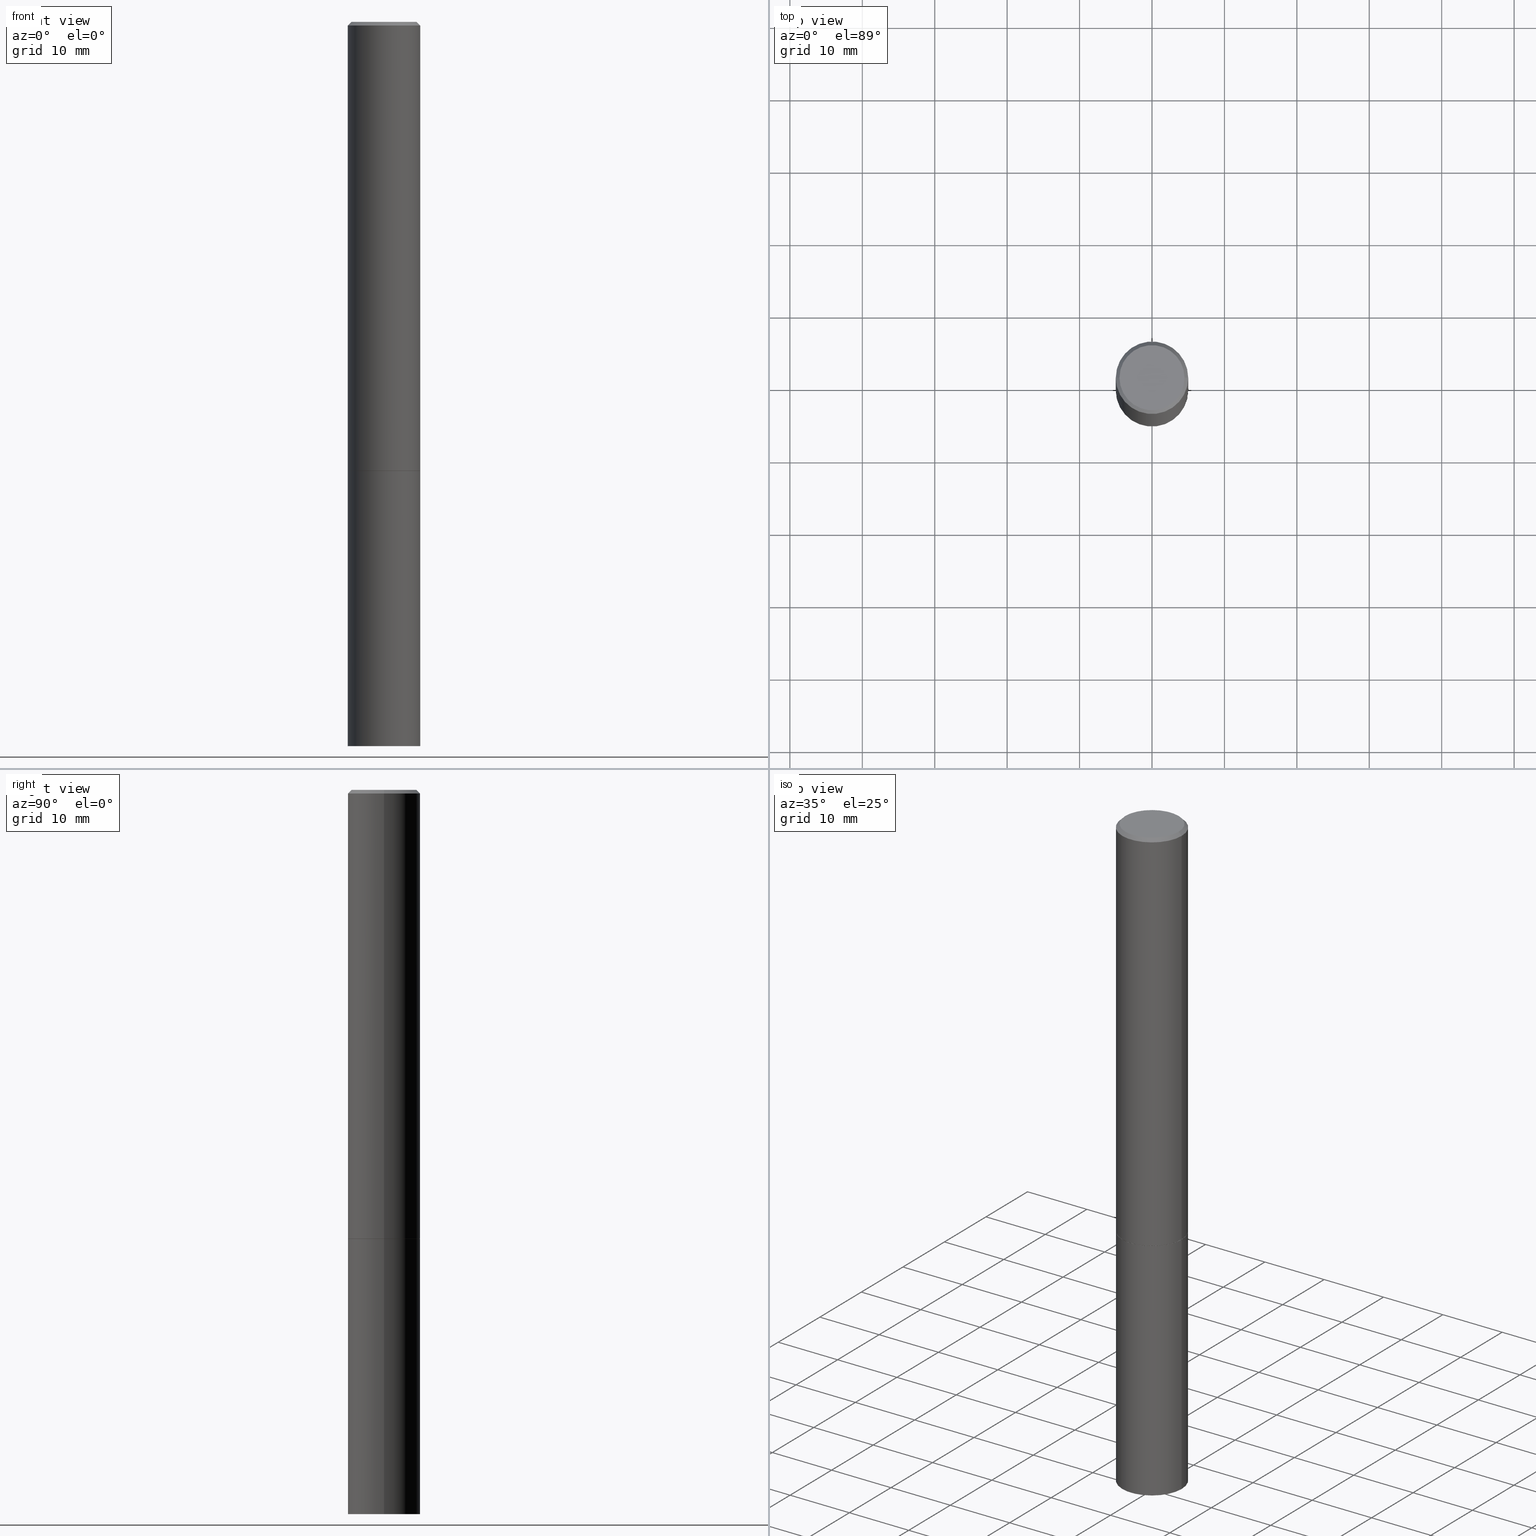
[diagram: canonical four-view strip — front | top / right | iso, engineering-drawing reading convention]
A machine part, canonical four-view strip (front | top / right | iso — engineering-drawing reading convention). The complete STEP part file that produces these views, byte-faithful:
ISO-10303-21;
HEADER;
FILE_DESCRIPTION (( 'STEP AP203' ),
    '1' );
FILE_NAME ('49497.STEP',
    '2024-02-29T00:19:27',
    ( '' ),
    ( '' ),
    'SwSTEP 2.0',
    'SolidWorks 2023',
    '' );
FILE_SCHEMA (( 'CONFIG_CONTROL_DESIGN' ));
ENDSEC;

DATA;
#1 = AXIS2_PLACEMENT_3D ( 'NONE', #11, #165, #64 ) ;
#2 = EDGE_CURVE ( 'NONE', #66, #182, #45, .T. ) ;
#3 = CARTESIAN_POINT ( 'NONE',  ( 0.1968500000000000527, -9.893461521745931567E-15, -2.439899999999999736 ) ) ;
#4 = PERSON ( 'UNSPECIFIED', 'UNSPECIFIED', 'UNSPECIFIED', ('UNSPECIFIED'), ('UNSPECIFIED'), ('UNSPECIFIED') ) ;
#5 = DIRECTION ( 'NONE',  ( 1.000000000000000000, -6.982962677686262766E-15, 0.000000000000000000 ) ) ;
#6 = DIRECTION ( 'NONE',  ( 1.000000000000000000, -6.982962677686266711E-15, 0.000000000000000000 ) ) ;
#7 = ADVANCED_FACE ( 'NONE', ( #24 ), #362, .T. ) ;
#8 = AXIS2_PLACEMENT_3D ( 'NONE', #347, #87, #261 ) ;
#9 = APPROVAL_PERSON_ORGANIZATION ( #187, #38, #220 ) ;
#10 = DIRECTION ( 'NONE',  ( 1.000000000000000000, -6.982962677686262766E-15, 0.000000000000000000 ) ) ;
#11 = CARTESIAN_POINT ( 'NONE',  ( 5.969144809017299038E-29, -8.522356799982232966E-15, -2.440900000000000070 ) ) ;
#12 = LINE ( 'NONE', #88, #313 ) ;
#13 = ORIENTED_EDGE ( 'NONE', *, *, #211, .T. ) ;
#14 = DIRECTION ( 'NONE',  ( 1.000000000000000000, -6.982962677686265922E-15, 4.876176775795935793E-29 ) ) ;
#15 = DIRECTION ( 'NONE',  ( 1.000000000000000000, -6.982962677686266711E-15, 0.000000000000000000 ) ) ;
#16 = VERTEX_POINT ( 'NONE', #110 ) ;
#17 = EDGE_LOOP ( 'NONE', ( #262, #257, #207, #298 ) ) ;
#18 = ADVANCED_FACE ( 'NONE', ( #271 ), #170, .T. ) ;
#19 = DIRECTION ( 'NONE',  ( -2.445468806185136877E-29, 3.491481338843145188E-15, 1.000000000000000000 ) ) ;
#20 = VECTOR ( 'NONE', #351, 39.37007874015748143 ) ;
#21 = CALENDAR_DATE ( 2024, 28, 2 ) ;
#22 = APPROVAL_DATE_TIME ( #276, #116 ) ;
#23 = CALENDAR_DATE ( 2024, 28, 2 ) ;
#24 = FACE_OUTER_BOUND ( 'NONE', #282, .T. ) ;
#25 = APPROVAL_PERSON_ORGANIZATION ( #222, #304, #216 ) ;
#26 = SECURITY_CLASSIFICATION ( '', '', #156 ) ;
#27 = EDGE_LOOP ( 'NONE', ( #81, #13 ) ) ;
#28 = ORIENTED_EDGE ( 'NONE', *, *, #230, .F. ) ;
#29 = ADVANCED_FACE ( 'NONE', ( #246 ), #330, .T. ) ;
#30 = LINE ( 'NONE', #309, #47 ) ;
#31 = PLANE ( 'NONE',  #8 ) ;
#32 = CARTESIAN_POINT ( 'NONE',  ( 4.890937612370278413E-31, -6.982962677686297772E-17, -0.02000000000000002123 ) ) ;
#33 = EDGE_CURVE ( 'NONE', #173, #363, #30, .T. ) ;
#34 = CYLINDRICAL_SURFACE ( 'NONE', #119, 0.1968499999999998307 ) ;
#35 = CIRCLE ( 'NONE', #359, 0.1968499999999996364 ) ;
#36 = DIRECTION ( 'NONE',  ( 1.000000000000000000, -6.982962677686265922E-15, 4.876176775795935793E-29 ) ) ;
#37 = DIRECTION ( 'NONE',  ( 1.000000000000000000, -6.982962677686266711E-15, 4.875932113059887537E-29 ) ) ;
#38 = APPROVAL ( #249, 'UNSPECIFIED' ) ;
#39 = CARTESIAN_POINT ( 'NONE',  ( 5.966699340211114556E-29, -8.518865318643389958E-15, -2.439899999999999736 ) ) ;
#40 = ORIENTED_EDGE ( 'NONE', *, *, #157, .F. ) ;
#41 = AXIS2_PLACEMENT_3D ( 'NONE', #48, #294, #209 ) ;
#42 = CC_DESIGN_APPROVAL ( #38, ( #278 ) ) ;
#43 = CARTESIAN_POINT ( 'NONE',  ( -0.1968500000000000527, -2.895644097366364896E-15, -2.439899999999999736 ) ) ;
#44 = EDGE_LOOP ( 'NONE', ( #151, #96, #326, #205 ) ) ;
#45 = LINE ( 'NONE', #112, #238 ) ;
#46 = EDGE_LOOP ( 'NONE', ( #40, #295 ) ) ;
#47 = VECTOR ( 'NONE', #256, 39.37007874015748143 ) ;
#48 = CARTESIAN_POINT ( 'NONE',  ( 9.627810689950883669E-29, -1.374596203102546341E-14, -3.937000000000000277 ) ) ;
#49 = AXIS2_PLACEMENT_3D ( 'NONE', #77, #244, #212 ) ;
#50 = EDGE_CURVE ( 'NONE', #127, #350, #365, .T. ) ;
#51 = MANIFOLD_SOLID_BREP ( 'Body-Move/Copy2[2]', #122 ) ;
#52 = PERSON_AND_ORGANIZATION_ROLE ( 'design_supplier' ) ;
#53 = APPROVAL_ROLE ( '' ) ;
#54 = MANIFOLD_SOLID_BREP ( 'Body-Move/Copy2[1]', #184 ) ;
#55 = DIRECTION ( 'NONE',  ( 2.445468806185136597E-29, -3.491481338843145583E-15, -1.000000000000000000 ) ) ;
#56 = VECTOR ( 'NONE', #343, 39.37007874015748143 ) ;
#57 = APPROVAL_STATUS ( 'not_yet_approved' ) ;
#58 = EDGE_LOOP ( 'NONE', ( #134, #176, #299, #334 ) ) ;
#59 = CARTESIAN_POINT ( 'NONE',  ( 0.000000000000000000, 0.000000000000000000, 0.000000000000000000 ) ) ;
#60 = DIRECTION ( 'NONE',  ( -2.445468806185136597E-29, 3.491481338843145583E-15, 1.000000000000000000 ) ) ;
#61 = AXIS2_PLACEMENT_3D ( 'NONE', #233, #342, #37 ) ;
#62 = AXIS2_PLACEMENT_3D ( 'NONE', #234, #202, #194 ) ;
#63 = APPROVAL_PERSON_ORGANIZATION ( #131, #116, #53 ) ;
#64 = DIRECTION ( 'NONE',  ( 1.000000000000000000, -6.982962677686262766E-15, 0.000000000000000000 ) ) ;
#65 = CARTESIAN_POINT ( 'NONE',  ( 0.1958499999999999963, -9.889970040407088560E-15, -2.440900000000000070 ) ) ;
#66 = VERTEX_POINT ( 'NONE', #3 ) ;
#67 = CARTESIAN_POINT ( 'NONE',  ( -0.1958499999999999963, -7.125460397647855362E-15, -2.440900000000000070 ) ) ;
#68 = VECTOR ( 'NONE', #19, 39.37007874015748143 ) ;
#69 = FACE_OUTER_BOUND ( 'NONE', #252, .T. ) ;
#70 = DIRECTION ( 'NONE',  ( 1.000000000000000000, -6.982962677686262766E-15, 0.000000000000000000 ) ) ;
#71 = CARTESIAN_POINT ( 'NONE',  ( 5.966699340211114556E-29, -8.518865318643389958E-15, -2.439899999999999736 ) ) ;
#72 = ORIENTED_EDGE ( 'NONE', *, *, #254, .F. ) ;
#73 = LOCAL_TIME ( 19, 19, 27.00000000000000000, #357 ) ;
#74 = LOCAL_TIME ( 19, 19, 27.00000000000000000, #305 ) ;
#75 = FACE_OUTER_BOUND ( 'NONE', #125, .T. ) ;
#76 = DIRECTION ( 'NONE',  ( 1.000000000000000000, -6.982962677686267499E-15, 0.000000000000000000 ) ) ;
#77 = CARTESIAN_POINT ( 'NONE',  ( 1.234936949548813631E-15, 0.1768499999999996464, -6.153342185293588703E-16 ) ) ;
#78 = ORIENTED_EDGE ( 'NONE', *, *, #141, .T. ) ;
#79 = PERSON_AND_ORGANIZATION_ROLE ( 'classification_officer' ) ;
#80 = DATE_AND_TIME ( #333, #73 ) ;
#81 = ORIENTED_EDGE ( 'NONE', *, *, #355, .T. ) ;
#82 = CALENDAR_DATE ( 2024, 28, 2 ) ;
#83 = EDGE_CURVE ( 'NONE', #227, #16, #113, .T. ) ;
#84 = DIRECTION ( 'NONE',  ( -2.445468806185136597E-29, 3.491481338843145583E-15, 1.000000000000000000 ) ) ;
#85 = CIRCLE ( 'NONE', #225, 0.1968500000000000527 ) ;
#86 = CARTESIAN_POINT ( 'NONE',  ( 1.374596203102637849E-15, 0.1968499999999862582, -3.937000000000000721 ) ) ;
#87 = DIRECTION ( 'NONE',  ( 2.438088387897960049E-29, -3.491481338843145188E-15, -1.000000000000000000 ) ) ;
#88 = CARTESIAN_POINT ( 'NONE',  ( 0.1968499999999996364, -1.420318657638186558E-15, -0.02000000000000002123 ) ) ;
#89 = CIRCLE ( 'NONE', #353, 0.1968500000000000250 ) ;
#90 = FACE_OUTER_BOUND ( 'NONE', #339, .T. ) ;
#91 = DIRECTION ( 'NONE',  ( -2.445468806185136597E-29, 3.491481338843145583E-15, 1.000000000000000000 ) ) ;
#92 = CARTESIAN_POINT ( 'NONE',  ( -0.1968499999999998307, 1.398703375343756013E-15, -9.682923725166775270E-30 ) ) ;
#93 = ADVANCED_FACE ( 'NONE', ( #180 ), #345, .T. ) ;
#94 = DIRECTION ( 'NONE',  ( -2.445468806185136597E-29, 3.491481338843145583E-15, 1.000000000000000000 ) ) ;
#95 = PLANE ( 'NONE',  #185 ) ;
#96 = ORIENTED_EDGE ( 'NONE', *, *, #284, .T. ) ;
#97 = EDGE_CURVE ( 'NONE', #363, #350, #320, .T. ) ;
#98 = DIRECTION ( 'NONE',  ( -2.438088387897960049E-29, 3.491481338843145188E-15, 1.000000000000000000 ) ) ;
#99 = ORIENTED_EDGE ( 'NONE', *, *, #193, .F. ) ;
#100 = CONICAL_SURFACE ( 'NONE', #62, 0.1968499999999996364, 0.7853981633974473908 ) ;
#101 = CC_DESIGN_APPROVAL ( #116, ( #26 ) ) ;
#102 = CARTESIAN_POINT ( 'NONE',  ( 0.000000000000000000, 0.000000000000000000, 0.000000000000000000 ) ) ;
#103 = EDGE_LOOP ( 'NONE', ( #301, #144, #28, #283 ) ) ;
#104 = MECHANICAL_CONTEXT ( 'NONE', #183, 'mechanical' ) ;
#105 = DATE_TIME_ROLE ( 'creation_date' ) ;
#106 = ADVANCED_FACE ( 'NONE', ( #287 ), #34, .T. ) ;
#107 = AXIS2_PLACEMENT_3D ( 'NONE', #172, #60, #10 ) ;
#108 = DATE_TIME_ROLE ( 'classification_date' ) ;
#109 = DATE_AND_TIME ( #23, #74 ) ;
#110 = CARTESIAN_POINT ( 'NONE',  ( -0.1968500000000000250, -9.735456040160091980E-15, -3.937000000000000277 ) ) ;
#111 = ADVANCED_FACE ( 'NONE', ( #143 ), #100, .T. ) ;
#112 = CARTESIAN_POINT ( 'NONE',  ( 0.1968499999999998307, -1.374596203102540425E-15, 9.598753983154291049E-30 ) ) ;
#113 = CIRCLE ( 'NONE', #318, 0.1968500000000000250 ) ;
#114 = VERTEX_POINT ( 'NONE', #118 ) ;
#115 = CARTESIAN_POINT ( 'NONE',  ( 9.627810689950883669E-29, -1.374596203102546341E-14, -3.937000000000000277 ) ) ;
#116 = APPROVAL ( #188, 'UNSPECIFIED' ) ;
#117 = CARTESIAN_POINT ( 'NONE',  ( 0.000000000000000000, 0.000000000000000000, 0.000000000000000000 ) ) ;
#118 = CARTESIAN_POINT ( 'NONE',  ( 0.1968500000000000250, -9.896953003084774574E-15, -2.440900000000000070 ) ) ;
#119 = AXIS2_PLACEMENT_3D ( 'NONE', #117, #288, #229 ) ;
#120 = DIRECTION ( 'NONE',  ( -2.445468806185136597E-29, 3.491481338843145583E-15, 1.000000000000000000 ) ) ;
#121 = CARTESIAN_POINT ( 'NONE',  ( 0.1768499999999996464, -1.316798864272039577E-15, 4.268512490109333727E-18 ) ) ;
#122 = CLOSED_SHELL ( 'NONE', ( #181, #106, #111, #18, #264, #344, #360, #317 ) ) ;
#123 = VECTOR ( 'NONE', #167, 39.37007874015748143 ) ;
#124 = CARTESIAN_POINT ( 'NONE',  ( -0.1968499999999996364, 1.304766576325675944E-15, -0.02000000000000002123 ) ) ;
#125 = EDGE_LOOP ( 'NONE', ( #168, #78, #214, #223 ) ) ;
#126 = APPLICATION_PROTOCOL_DEFINITION ( 'international standard', 'config_control_design', 1994, #183 ) ;
#127 = VERTEX_POINT ( 'NONE', #140 ) ;
#128 = FACE_OUTER_BOUND ( 'NONE', #27, .T. ) ;
#129 = ADVANCED_FACE ( 'NONE', ( #69 ), #31, .F. ) ;
#130 = UNCERTAINTY_MEASURE_WITH_UNIT (LENGTH_MEASURE( 1.000000000000000082E-05 ), #154, 'distance_accuracy_value', 'NONE');
#131 = PERSON_AND_ORGANIZATION ( #4, #297 ) ;
#132 = CIRCLE ( 'NONE', #61, 0.1768499999999996464 ) ;
#133 = COORDINATED_UNIVERSAL_TIME_OFFSET ( 5, 0, .BEHIND. ) ;
#134 = ORIENTED_EDGE ( 'NONE', *, *, #226, .F. ) ;
#135 = DIRECTION ( 'NONE',  ( 2.438088387897960049E-29, -3.491481338843145188E-15, -1.000000000000000000 ) ) ;
#136 = ORIENTED_EDGE ( 'NONE', *, *, #290, .F. ) ;
#137 = CIRCLE ( 'NONE', #250, 0.1768499999999996464 ) ;
#138 = CARTESIAN_POINT ( 'NONE',  ( -0.1968500000000000250, -9.735456040160091980E-15, -2.440900000000000070 ) ) ;
#139 = DIRECTION ( 'NONE',  ( 1.000000000000000000, -6.982962677686266711E-15, 0.000000000000000000 ) ) ;
#140 = CARTESIAN_POINT ( 'NONE',  ( -0.1768499999999996464, 1.269851762937245083E-15, 4.268512490091652920E-18 ) ) ;
#141 = EDGE_CURVE ( 'NONE', #173, #279, #219, .T. ) ;
#142 = DIRECTION ( 'NONE',  ( 1.000000000000000000, -6.982962677686262766E-15, 0.000000000000000000 ) ) ;
#143 = FACE_OUTER_BOUND ( 'NONE', #17, .T. ) ;
#144 = ORIENTED_EDGE ( 'NONE', *, *, #97, .T. ) ;
#145 = FACE_OUTER_BOUND ( 'NONE', #46, .T. ) ;
#146 = AXIS2_PLACEMENT_3D ( 'NONE', #32, #340, #139 ) ;
#147 = LENGTH_MEASURE_WITH_UNIT ( LENGTH_MEASURE( 0.02539999999999999897 ), #323 );
#148 = ORIENTED_EDGE ( 'NONE', *, *, #83, .T. ) ;
#149 = VERTEX_POINT ( 'NONE', #138 ) ;
#150 = DIRECTION ( 'NONE',  ( 0.000000000000000000, 0.000000000000000000, 1.000000000000000000 ) ) ;
#151 = ORIENTED_EDGE ( 'NONE', *, *, #280, .F. ) ;
#152 = CC_DESIGN_PERSON_AND_ORGANIZATION_ASSIGNMENT ( #175, #215, ( #293 ) ) ;
#153 = CIRCLE ( 'NONE', #1, 0.1968500000000000250 ) ;
#154 =( CONVERSION_BASED_UNIT ( 'INCH', #147 ) LENGTH_UNIT ( ) NAMED_UNIT ( #213 ) );
#155 = PERSON_AND_ORGANIZATION_ROLE ( 'creator' ) ;
#156 = SECURITY_CLASSIFICATION_LEVEL ( 'unclassified' ) ;
#157 = EDGE_CURVE ( 'NONE', #279, #173, #218, .T. ) ;
#158 = AXIS2_PLACEMENT_3D ( 'NONE', #166, #263, #142 ) ;
#159 = DIRECTION ( 'NONE',  ( -1.000000000000000000, 6.982962677686266711E-15, 0.000000000000000000 ) ) ;
#160 = PERSON_AND_ORGANIZATION ( #4, #297 ) ;
#161 = DIRECTION ( 'NONE',  ( -2.445468806185136877E-29, 3.491481338843145188E-15, 1.000000000000000000 ) ) ;
#162 = COORDINATED_UNIVERSAL_TIME_OFFSET ( 5, 0, .BEHIND. ) ;
#163 = DIRECTION ( 'NONE',  ( -0.7071067811865469066, 2.468850131082250355E-15, -0.7071067811865481278 ) ) ;
#164 = CC_DESIGN_DATE_AND_TIME_ASSIGNMENT ( #80, #105, ( #332 ) ) ;
#165 = DIRECTION ( 'NONE',  ( -2.445468806185136597E-29, 3.491481338843145583E-15, 1.000000000000000000 ) ) ;
#166 = CARTESIAN_POINT ( 'NONE',  ( 5.969144809017300159E-29, -8.522356799982234543E-15, -2.440900000000000070 ) ) ;
#167 = DIRECTION ( 'NONE',  ( -2.445468806185136877E-29, 3.491481338843145188E-15, 1.000000000000000000 ) ) ;
#168 = ORIENTED_EDGE ( 'NONE', *, *, #33, .F. ) ;
#169 = DIRECTION ( 'NONE',  ( -2.445468806185136597E-29, 3.491481338843145583E-15, 1.000000000000000000 ) ) ;
#170 = CONICAL_SURFACE ( 'NONE', #224, 0.1968499999999996364, 0.7853981633974473908 ) ;
#171 = AXIS2_PLACEMENT_3D ( 'NONE', #39, #247, #236 ) ;
#172 = CARTESIAN_POINT ( 'NONE',  ( 5.969144809017300159E-29, -8.522356799982234543E-15, -2.440900000000000070 ) ) ;
#173 = VERTEX_POINT ( 'NONE', #67 ) ;
#174 = CC_DESIGN_DATE_AND_TIME_ASSIGNMENT ( #361, #108, ( #26 ) ) ;
#175 = PERSON_AND_ORGANIZATION ( #4, #297 ) ;
#176 = ORIENTED_EDGE ( 'NONE', *, *, #355, .F. ) ;
#177 = LOCAL_TIME ( 19, 19, 27.00000000000000000, #133 ) ;
#178 = ORIENTED_EDGE ( 'NONE', *, *, #33, .T. ) ;
#179 = DIRECTION ( 'NONE',  ( -2.445468806185136597E-29, 3.491481338843145583E-15, 1.000000000000000000 ) ) ;
#180 = FACE_OUTER_BOUND ( 'NONE', #44, .T. ) ;
#181 = ADVANCED_FACE ( 'NONE', ( #228 ), #348, .T. ) ;
#182 = VERTEX_POINT ( 'NONE', #265 ) ;
#183 = APPLICATION_CONTEXT ( 'configuration controlled 3d designs of mechanical parts and assemblies' ) ;
#184 = CLOSED_SHELL ( 'NONE', ( #29, #7, #129, #93 ) ) ;
#185 = AXIS2_PLACEMENT_3D ( 'NONE', #329, #98, #14 ) ;
#186 = CALENDAR_DATE ( 2024, 28, 2 ) ;
#187 = PERSON_AND_ORGANIZATION ( #4, #297 ) ;
#188 = APPROVAL_STATUS ( 'not_yet_approved' ) ;
#189 = DIRECTION ( 'NONE',  ( -1.000000000000000000, 6.982962677686265922E-15, -4.876176775795935793E-29 ) ) ;
#190 = CIRCLE ( 'NONE', #146, 0.1968499999999996364 ) ;
#191 = PERSON_AND_ORGANIZATION_ROLE ( 'creator' ) ;
#192 = DIRECTION ( 'NONE',  ( 1.000000000000000000, -6.982962677686265922E-15, 4.876176775795935793E-29 ) ) ;
#193 = EDGE_CURVE ( 'NONE', #114, #149, #153, .T. ) ;
#194 = DIRECTION ( 'NONE',  ( -1.000000000000000000, 6.982962677686266711E-15, 0.000000000000000000 ) ) ;
#195 = CIRCLE ( 'NONE', #171, 0.1968500000000000527 ) ;
#196 = DIRECTION ( 'NONE',  ( 0.7071067811865469066, -7.319954787623254468E-15, -0.7071067811865481278 ) ) ;
#197 = LOCAL_TIME ( 19, 19, 27.00000000000000000, #281 ) ;
#198 = EDGE_CURVE ( 'NONE', #149, #114, #89, .T. ) ;
#199 = CYLINDRICAL_SURFACE ( 'NONE', #204, 0.1968499999999998307 ) ;
#200 = DESIGN_CONTEXT ( 'detailed design', #208, 'design' ) ;
#201 = DIRECTION ( 'NONE',  ( 1.000000000000000000, -6.982962677686266711E-15, 4.876176775795935793E-29 ) ) ;
#202 = DIRECTION ( 'NONE',  ( 2.445468806185136597E-29, -3.491481338843145583E-15, -1.000000000000000000 ) ) ;
#203 = AXIS2_PLACEMENT_3D ( 'NONE', #59, #84, #192 ) ;
#204 = AXIS2_PLACEMENT_3D ( 'NONE', #315, #91, #201 ) ;
#205 = ORIENTED_EDGE ( 'NONE', *, *, #198, .F. ) ;
#206 = DIRECTION ( 'NONE',  ( -2.445468806185136597E-29, 3.491481338843145583E-15, 1.000000000000000000 ) ) ;
#207 = ORIENTED_EDGE ( 'NONE', *, *, #230, .T. ) ;
#208 = APPLICATION_CONTEXT ( 'configuration controlled 3d designs of mechanical parts and assemblies' ) ;
#209 = DIRECTION ( 'NONE',  ( 1.000000000000000000, -6.982962677686267499E-15, 0.000000000000000000 ) ) ;
#210 = ORIENTED_EDGE ( 'NONE', *, *, #198, .T. ) ;
#211 = EDGE_CURVE ( 'NONE', #253, #127, #132, .T. ) ;
#212 = DIRECTION ( 'NONE',  ( -1.000000000000000000, 6.982962677686265922E-15, -4.876176775795935793E-29 ) ) ;
#213 = DIMENSIONAL_EXPONENTS ( 1.000000000000000000, 0.000000000000000000, 0.000000000000000000, 0.000000000000000000, 0.000000000000000000, 0.000000000000000000, 0.000000000000000000 ) ;
#214 = ORIENTED_EDGE ( 'NONE', *, *, #254, .T. ) ;
#215 = PERSON_AND_ORGANIZATION_ROLE ( 'design_owner' ) ;
#216 = APPROVAL_ROLE ( '' ) ;
#217 = CC_DESIGN_PERSON_AND_ORGANIZATION_ASSIGNMENT ( #160, #52, ( #278 ) ) ;
#218 = CIRCLE ( 'NONE', #158, 0.1958499999999999963 ) ;
#219 = CIRCLE ( 'NONE', #337, 0.1958499999999999963 ) ;
#220 = APPROVAL_ROLE ( '' ) ;
#221 = ORIENTED_EDGE ( 'NONE', *, *, #193, .T. ) ;
#222 = PERSON_AND_ORGANIZATION ( #4, #297 ) ;
#223 = ORIENTED_EDGE ( 'NONE', *, *, #270, .F. ) ;
#224 = AXIS2_PLACEMENT_3D ( 'NONE', #336, #55, #159 ) ;
#225 = AXIS2_PLACEMENT_3D ( 'NONE', #71, #94, #15 ) ;
#226 = EDGE_CURVE ( 'NONE', #253, #182, #12, .T. ) ;
#227 = VERTEX_POINT ( 'NONE', #314 ) ;
#228 = FACE_OUTER_BOUND ( 'NONE', #243, .T. ) ;
#229 = DIRECTION ( 'NONE',  ( 1.000000000000000000, -6.982962677686266711E-15, 4.876176775795935793E-29 ) ) ;
#230 = EDGE_CURVE ( 'NONE', #182, #350, #190, .T. ) ;
#231 = CC_DESIGN_APPROVAL ( #304, ( #332 ) ) ;
#232 = LINE ( 'NONE', #65, #56 ) ;
#233 = CARTESIAN_POINT ( 'NONE',  ( -1.043851414335219820E-46, 1.490343170380447200E-32, 4.268512490100411279E-18 ) ) ;
#234 = CARTESIAN_POINT ( 'NONE',  ( 4.890937612370278413E-31, -6.982962677686297772E-17, -0.02000000000000002123 ) ) ;
#235 = ORIENTED_EDGE ( 'NONE', *, *, #284, .F. ) ;
#236 = DIRECTION ( 'NONE',  ( 1.000000000000000000, -6.982962677686266711E-15, 0.000000000000000000 ) ) ;
#237 = CC_DESIGN_PERSON_AND_ORGANIZATION_ASSIGNMENT ( #277, #155, ( #332 ) ) ;
#238 = VECTOR ( 'NONE', #161, 39.37007874015748143 ) ;
#239 = AXIS2_PLACEMENT_3D ( 'NONE', #102, #150, #274 ) ;
#240 = DIRECTION ( 'NONE',  ( 1.000000000000000000, -6.982962677686266711E-15, 4.875932113059887537E-29 ) ) ;
#241 = ORIENTED_EDGE ( 'NONE', *, *, #306, .F. ) ;
#242 = CARTESIAN_POINT ( 'NONE',  ( 0.1958499999999999963, -9.889970040407088560E-15, -2.440900000000000070 ) ) ;
#243 = EDGE_LOOP ( 'NONE', ( #266, #178, #136, #72 ) ) ;
#244 = DIRECTION ( 'NONE',  ( 2.438088387897960049E-29, -3.491481338843145188E-15, -1.000000000000000000 ) ) ;
#245 = CIRCLE ( 'NONE', #41, 0.1968500000000000250 ) ;
#246 = FACE_OUTER_BOUND ( 'NONE', #346, .T. ) ;
#247 = DIRECTION ( 'NONE',  ( -2.445468806185136597E-29, 3.491481338843145583E-15, 1.000000000000000000 ) ) ;
#248 = EDGE_CURVE ( 'NONE', #350, #182, #35, .T. ) ;
#249 = APPROVAL_STATUS ( 'not_yet_approved' ) ;
#250 = AXIS2_PLACEMENT_3D ( 'NONE', #325, #206, #240 ) ;
#251 = APPLICATION_PROTOCOL_DEFINITION ( 'international standard', 'config_control_design', 1994, #208 ) ;
#252 = EDGE_LOOP ( 'NONE', ( #221, #210 ) ) ;
#253 = VERTEX_POINT ( 'NONE', #121 ) ;
#254 = EDGE_CURVE ( 'NONE', #279, #66, #232, .T. ) ;
#255 = SHAPE_DEFINITION_REPRESENTATION ( #319, #322 ) ;
#256 = DIRECTION ( 'NONE',  ( -0.7071067811864388819, 7.493145998869961307E-15, 0.7071067811866561525 ) ) ;
#257 = ORIENTED_EDGE ( 'NONE', *, *, #226, .T. ) ;
#258 = CARTESIAN_POINT ( 'NONE',  ( 5.969144809017299038E-29, -8.522356799982232966E-15, -2.440900000000000070 ) ) ;
#259 = CARTESIAN_POINT ( 'NONE',  ( 4.890937612370278413E-31, -6.982962677686297772E-17, -0.02000000000000002123 ) ) ;
#260 = CONICAL_SURFACE ( 'NONE', #308, 0.1958499999999999963, 0.7853981633972946241 ) ;
#261 = DIRECTION ( 'NONE',  ( -1.000000000000000000, 6.982962677686265922E-15, -4.876176775795935793E-29 ) ) ;
#262 = ORIENTED_EDGE ( 'NONE', *, *, #211, .F. ) ;
#263 = DIRECTION ( 'NONE',  ( -2.445468806185136597E-29, 3.491481338843145583E-15, 1.000000000000000000 ) ) ;
#264 = ADVANCED_FACE ( 'NONE', ( #90 ), #199, .T. ) ;
#265 = CARTESIAN_POINT ( 'NONE',  ( 0.1968499999999996364, -1.420318657638186558E-15, -0.02000000000000002123 ) ) ;
#266 = ORIENTED_EDGE ( 'NONE', *, *, #157, .T. ) ;
#267 = LINE ( 'NONE', #296, #68 ) ;
#268 = AXIS2_PLACEMENT_3D ( 'NONE', #316, #120, #36 ) ;
#269 = CC_DESIGN_SECURITY_CLASSIFICATION ( #26, ( #278 ) ) ;
#270 = EDGE_CURVE ( 'NONE', #363, #66, #195, .T. ) ;
#271 = FACE_OUTER_BOUND ( 'NONE', #58, .T. ) ;
#272 = VECTOR ( 'NONE', #163, 39.37007874015748143 ) ;
#273 = ORIENTED_EDGE ( 'NONE', *, *, #97, .F. ) ;
#274 = DIRECTION ( 'NONE',  ( 1.000000000000000000, 0.000000000000000000, 0.000000000000000000 ) ) ;
#275 = CC_DESIGN_PERSON_AND_ORGANIZATION_ASSIGNMENT ( #364, #79, ( #26 ) ) ;
#276 = DATE_AND_TIME ( #21, #289 ) ;
#277 = PERSON_AND_ORGANIZATION ( #4, #297 ) ;
#278 = PRODUCT_DEFINITION_FORMATION_WITH_SPECIFIED_SOURCE ( 'ANY', '', #293, .NOT_KNOWN. ) ;
#279 = VERTEX_POINT ( 'NONE', #242 ) ;
#280 = EDGE_CURVE ( 'NONE', #16, #149, #327, .T. ) ;
#281 = COORDINATED_UNIVERSAL_TIME_OFFSET ( 5, 0, .BEHIND. ) ;
#282 = EDGE_LOOP ( 'NONE', ( #321, #235 ) ) ;
#283 = ORIENTED_EDGE ( 'NONE', *, *, #2, .F. ) ;
#284 = EDGE_CURVE ( 'NONE', #16, #227, #245, .T. ) ;
#285 = DIRECTION ( 'NONE',  ( 1.000000000000000000, -6.982962677686262766E-15, 0.000000000000000000 ) ) ;
#286 = DIRECTION ( 'NONE',  ( -2.445468806185136597E-29, 3.491481338843145583E-15, 1.000000000000000000 ) ) ;
#287 = FACE_OUTER_BOUND ( 'NONE', #103, .T. ) ;
#288 = DIRECTION ( 'NONE',  ( -2.445468806185136597E-29, 3.491481338843145583E-15, 1.000000000000000000 ) ) ;
#289 = LOCAL_TIME ( 19, 19, 27.00000000000000000, #162 ) ;
#290 = EDGE_CURVE ( 'NONE', #66, #363, #85, .T. ) ;
#291 = ORIENTED_EDGE ( 'NONE', *, *, #270, .T. ) ;
#292 = DIRECTION ( 'NONE',  ( -2.445468806185136597E-29, 3.491481338843145583E-15, 1.000000000000000000 ) ) ;
#293 = PRODUCT ( '49497', '49497', '', ( #104 ) ) ;
#294 = DIRECTION ( 'NONE',  ( -2.445468806185136597E-29, 3.491481338843145583E-15, 1.000000000000000000 ) ) ;
#295 = ORIENTED_EDGE ( 'NONE', *, *, #141, .F. ) ;
#296 = CARTESIAN_POINT ( 'NONE',  ( 0.1968500000000000250, -1.374596203102541608E-15, 9.598753983154300858E-30 ) ) ;
#297 = ORGANIZATION ( 'UNSPECIFIED', 'UNSPECIFIED', '' ) ;
#298 = ORIENTED_EDGE ( 'NONE', *, *, #50, .F. ) ;
#299 = ORIENTED_EDGE ( 'NONE', *, *, #50, .T. ) ;
#300 =( NAMED_UNIT ( * ) PLANE_ANGLE_UNIT ( ) SI_UNIT ( $, .RADIAN. ) );
#301 = ORIENTED_EDGE ( 'NONE', *, *, #290, .T. ) ;
#302 = CARTESIAN_POINT ( 'NONE',  ( -0.1968500000000000250, 1.398703375343757393E-15, -9.682923725166783677E-30 ) ) ;
#303 =( GEOMETRIC_REPRESENTATION_CONTEXT ( 3 ) GLOBAL_UNCERTAINTY_ASSIGNED_CONTEXT ( ( #130 ) ) GLOBAL_UNIT_ASSIGNED_CONTEXT ( ( #154, #300, #356 ) ) REPRESENTATION_CONTEXT ( 'NONE', 'WORKASPACE' ) );
#304 = APPROVAL ( #57, 'UNSPECIFIED' ) ;
#305 = COORDINATED_UNIVERSAL_TIME_OFFSET ( 5, 0, .BEHIND. ) ;
#306 = EDGE_CURVE ( 'NONE', #227, #114, #267, .T. ) ;
#307 = ORIENTED_EDGE ( 'NONE', *, *, #248, .F. ) ;
#308 = AXIS2_PLACEMENT_3D ( 'NONE', #349, #179, #70 ) ;
#309 = CARTESIAN_POINT ( 'NONE',  ( -0.1958499999999999963, -7.130758851996077764E-15, -2.440900000000000070 ) ) ;
#310 = APPROVAL_DATE_TIME ( #335, #304 ) ;
#311 = CARTESIAN_POINT ( 'NONE',  ( -0.1968499999999996364, 1.304766576325675944E-15, -0.02000000000000002123 ) ) ;
#312 = CARTESIAN_POINT ( 'NONE',  ( 5.969144809017300159E-29, -8.522356799982234543E-15, -2.440900000000000070 ) ) ;
#313 = VECTOR ( 'NONE', #196, 39.37007874015748143 ) ;
#314 = CARTESIAN_POINT ( 'NONE',  ( 0.1968500000000000250, -1.512055823412800660E-14, -3.937000000000000277 ) ) ;
#315 = CARTESIAN_POINT ( 'NONE',  ( 0.000000000000000000, 0.000000000000000000, 0.000000000000000000 ) ) ;
#316 = CARTESIAN_POINT ( 'NONE',  ( 0.000000000000000000, 0.000000000000000000, 0.000000000000000000 ) ) ;
#317 = ADVANCED_FACE ( 'NONE', ( #128 ), #331, .F. ) ;
#318 = AXIS2_PLACEMENT_3D ( 'NONE', #115, #328, #76 ) ;
#319 = PRODUCT_DEFINITION_SHAPE ( 'NONE', 'NONE',  #332 ) ;
#320 = LINE ( 'NONE', #92, #123 ) ;
#321 = ORIENTED_EDGE ( 'NONE', *, *, #83, .F. ) ;
#322 = ADVANCED_BREP_SHAPE_REPRESENTATION ( '49497', ( #54, #51, #239 ), #303 ) ;
#323 =( LENGTH_UNIT ( ) NAMED_UNIT ( * ) SI_UNIT ( $, .METRE. ) );
#324 = PRODUCT_RELATED_PRODUCT_CATEGORY ( 'detail', '', ( #293 ) ) ;
#325 = CARTESIAN_POINT ( 'NONE',  ( -1.043851414335219820E-46, 1.490343170380447200E-32, 4.268512490100411279E-18 ) ) ;
#326 = ORIENTED_EDGE ( 'NONE', *, *, #306, .T. ) ;
#327 = LINE ( 'NONE', #302, #20 ) ;
#328 = DIRECTION ( 'NONE',  ( -2.445468806185136597E-29, 3.491481338843145583E-15, 1.000000000000000000 ) ) ;
#329 = CARTESIAN_POINT ( 'NONE',  ( 5.969144809017300159E-29, -8.522356799982234543E-15, -2.440900000000000070 ) ) ;
#330 = CYLINDRICAL_SURFACE ( 'NONE', #203, 0.1968500000000000250 ) ;
#331 = PLANE ( 'NONE',  #49 ) ;
#332 = PRODUCT_DEFINITION ( 'UNKNOWN', '', #278, #200 ) ;
#333 = CALENDAR_DATE ( 2024, 28, 2 ) ;
#334 = ORIENTED_EDGE ( 'NONE', *, *, #248, .T. ) ;
#335 = DATE_AND_TIME ( #186, #177 ) ;
#336 = CARTESIAN_POINT ( 'NONE',  ( 4.890937612370278413E-31, -6.982962677686297772E-17, -0.02000000000000002123 ) ) ;
#337 = AXIS2_PLACEMENT_3D ( 'NONE', #312, #292, #285 ) ;
#338 = APPROVAL_DATE_TIME ( #109, #38 ) ;
#339 = EDGE_LOOP ( 'NONE', ( #273, #291, #352, #307 ) ) ;
#340 = DIRECTION ( 'NONE',  ( -2.445468806185136597E-29, 3.491481338843145583E-15, 1.000000000000000000 ) ) ;
#341 = CC_DESIGN_PERSON_AND_ORGANIZATION_ASSIGNMENT ( #358, #191, ( #278 ) ) ;
#342 = DIRECTION ( 'NONE',  ( -2.445468806185136597E-29, 3.491481338843145583E-15, 1.000000000000000000 ) ) ;
#343 = DIRECTION ( 'NONE',  ( 0.7071067811864388819, -2.468850131081119129E-15, 0.7071067811866561525 ) ) ;
#344 = ADVANCED_FACE ( 'NONE', ( #75 ), #260, .T. ) ;
#345 = CYLINDRICAL_SURFACE ( 'NONE', #268, 0.1968500000000000250 ) ;
#346 = EDGE_LOOP ( 'NONE', ( #148, #354, #99, #241 ) ) ;
#347 = CARTESIAN_POINT ( 'NONE',  ( 1.374596203102601167E-15, 0.1968499999999914762, -2.440900000000000514 ) ) ;
#348 = CONICAL_SURFACE ( 'NONE', #107, 0.1958499999999999963, 0.7853981633972946241 ) ;
#349 = CARTESIAN_POINT ( 'NONE',  ( 5.969144809017300159E-29, -8.522356799982234543E-15, -2.440900000000000070 ) ) ;
#350 = VERTEX_POINT ( 'NONE', #124 ) ;
#351 = DIRECTION ( 'NONE',  ( -2.445468806185136877E-29, 3.491481338843145188E-15, 1.000000000000000000 ) ) ;
#352 = ORIENTED_EDGE ( 'NONE', *, *, #2, .T. ) ;
#353 = AXIS2_PLACEMENT_3D ( 'NONE', #258, #286, #5 ) ;
#354 = ORIENTED_EDGE ( 'NONE', *, *, #280, .T. ) ;
#355 = EDGE_CURVE ( 'NONE', #127, #253, #137, .T. ) ;
#356 =( NAMED_UNIT ( * ) SI_UNIT ( $, .STERADIAN. ) SOLID_ANGLE_UNIT ( ) );
#357 = COORDINATED_UNIVERSAL_TIME_OFFSET ( 5, 0, .BEHIND. ) ;
#358 = PERSON_AND_ORGANIZATION ( #4, #297 ) ;
#359 = AXIS2_PLACEMENT_3D ( 'NONE', #259, #169, #6 ) ;
#360 = ADVANCED_FACE ( 'NONE', ( #145 ), #95, .F. ) ;
#361 = DATE_AND_TIME ( #82, #197 ) ;
#362 = PLANE ( 'NONE',  #366 ) ;
#363 = VERTEX_POINT ( 'NONE', #43 ) ;
#364 = PERSON_AND_ORGANIZATION ( #4, #297 ) ;
#365 = LINE ( 'NONE', #311, #272 ) ;
#366 = AXIS2_PLACEMENT_3D ( 'NONE', #86, #135, #189 ) ;
ENDSEC;
END-ISO-10303-21;
